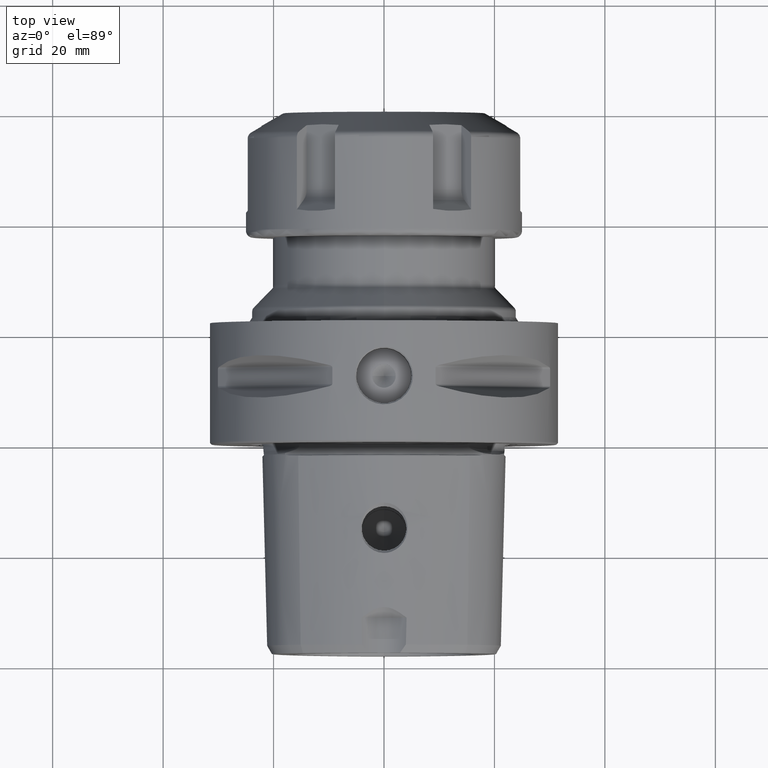
[diagram: clean part render]
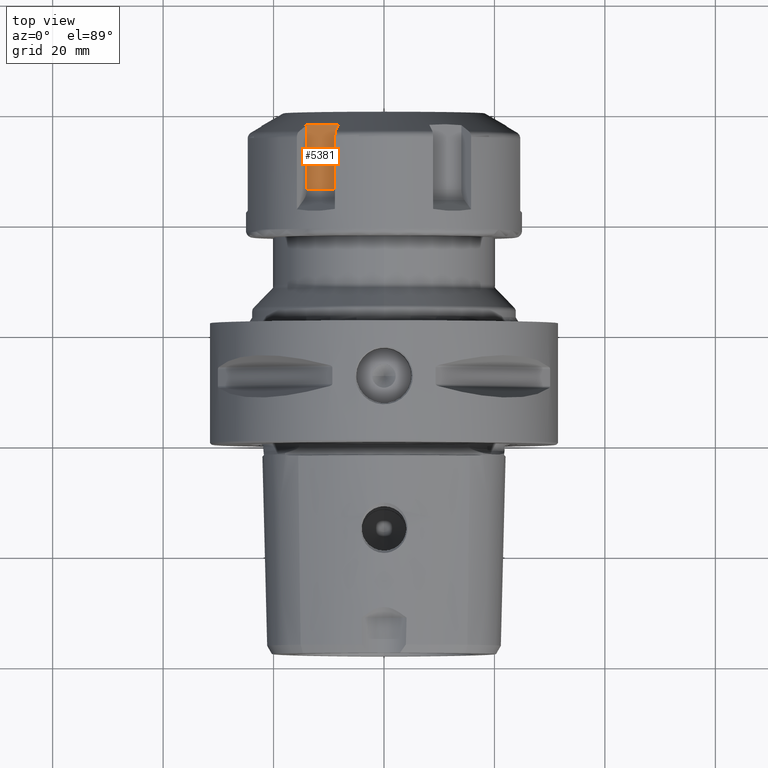
[diagram: same view with one face highlighted and labeled with its STEP entity id]
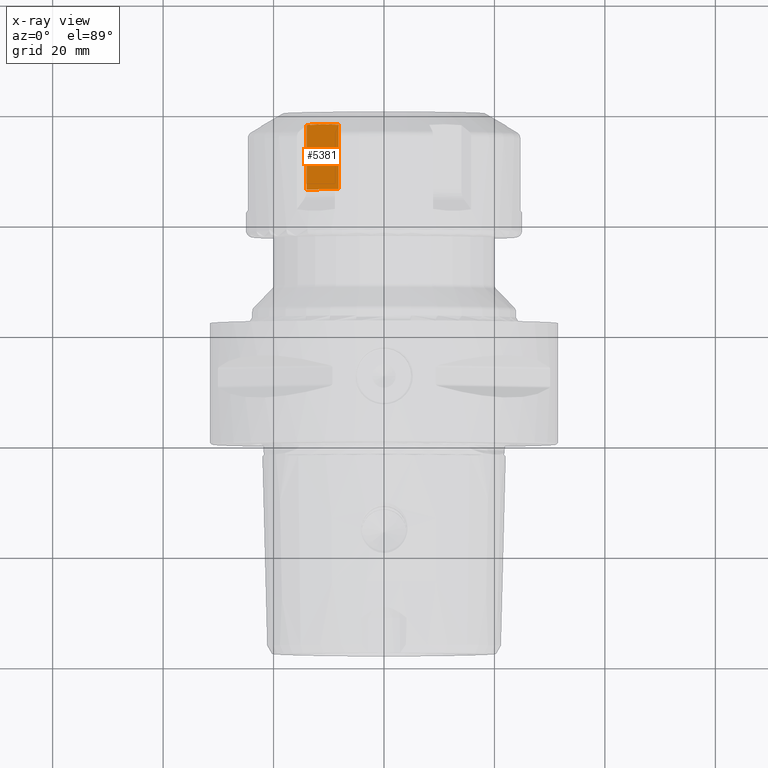
[diagram: x-ray of the same camera — body ghosted, the highlighted face saturated]
A machine part, top view. The second image highlights one B-rep face of the part: STEP entity #5381.
The next image is the same camera in x-ray: the body ghosted, the highlighted face saturated — about 0% of this face is hidden behind the body in this view.
In plain terms, the highlighted planar face has unit normal (0.5, 0, -0.866).
Its self-contained STEP definition (entity closure, byte-faithful):
#4625=CARTESIAN_POINT('',(8.408376618407E0,1.400118510268E1,1.755076396401E1));
#4631=DIRECTION('',(-1.E0,0.E0,0.E0));
#4632=VECTOR('',#4631,1.166598075912E1);
#4633=CARTESIAN_POINT('',(2.007435737753E1,1.400118510268E1,1.755076396401E1));
#4634=LINE('',#4633,#4632);
#4635=DIRECTION('',(0.E0,8.660254037844E-1,-5.E-1));
#4636=VECTOR('',#4635,6.7E0);
#4637=CARTESIAN_POINT('',(8.408376618407E0,8.198814897322E0,2.090076396401E1));
#4638=LINE('',#4637,#4636);
#4639=DIRECTION('',(-1.E0,0.E0,0.E0));
#4640=VECTOR('',#4639,1.166598075912E1);
#4641=CARTESIAN_POINT('',(2.007435737753E1,8.198814897322E0,2.090076396401E1));
#4642=LINE('',#4641,#4640);
#4685=CARTESIAN_POINT('',(2.007435737753E1,8.198814897322E0,2.090076396401E1));
#4691=CARTESIAN_POINT('',(2.007435737753E1,1.400118510268E1,1.755076396401E1));
#4692=CARTESIAN_POINT('',(2.013850261850E1,1.335634344231E1,1.792306347021E1));
#4693=CARTESIAN_POINT('',(2.022485531472E1,1.206682276103E1,1.866756858268E1));
#4694=CARTESIAN_POINT('',(2.022485360844E1,1.013313789773E1,1.978398205903E1));
#4695=CARTESIAN_POINT('',(2.013850094754E1,8.843639759743E0,2.052847415612E1));
#4696=CARTESIAN_POINT('',(2.007435737753E1,8.198814897322E0,2.090076396401E1));
#5013=VERTEX_POINT('',#4685);
#5015=VERTEX_POINT('',#4691);
#5024=VERTEX_POINT('',#4625);
#5025=CARTESIAN_POINT('',(8.408376618407E0,8.198814897322E0,2.090076396401E1));
#5026=VERTEX_POINT('',#5025);
#5368=CARTESIAN_POINT('',(2.25E1,8.198814897322E0,2.090076396401E1));
#5369=DIRECTION('',(0.E0,-5.E-1,-8.660254037844E-1));
#5370=DIRECTION('',(0.E0,8.660254037844E-1,-5.E-1));
#5371=AXIS2_PLACEMENT_3D('',#5368,#5369,#5370);
#5372=PLANE('',#5371);
#5373=ORIENTED_EDGE('',*,*,#5359,.T.);
#5374=ORIENTED_EDGE('',*,*,#5348,.F.);
#5376=ORIENTED_EDGE('',*,*,#5375,.T.);
#5378=ORIENTED_EDGE('',*,*,#5377,.T.);
#5379=EDGE_LOOP('',(#5373,#5374,#5376,#5378));
#5380=FACE_OUTER_BOUND('',#5379,.F.);
#5381=ADVANCED_FACE('',(#5380),#5372,.F.);
#4697=B_SPLINE_CURVE_WITH_KNOTS('',3,(#4691,#4692,#4693,#4694,#4695,#4696),
.UNSPECIFIED.,.F.,.F.,(4,1,1,4),(0.E0,3.333333333333E-1,6.666666666667E-1,1.E0),
.UNSPECIFIED.);
#5348=EDGE_CURVE('',#5015,#5024,#4634,.T.);
#5359=EDGE_CURVE('',#5026,#5024,#4638,.T.);
#5375=EDGE_CURVE('',#5015,#5013,#4697,.T.);
#5377=EDGE_CURVE('',#5013,#5026,#4642,.T.);